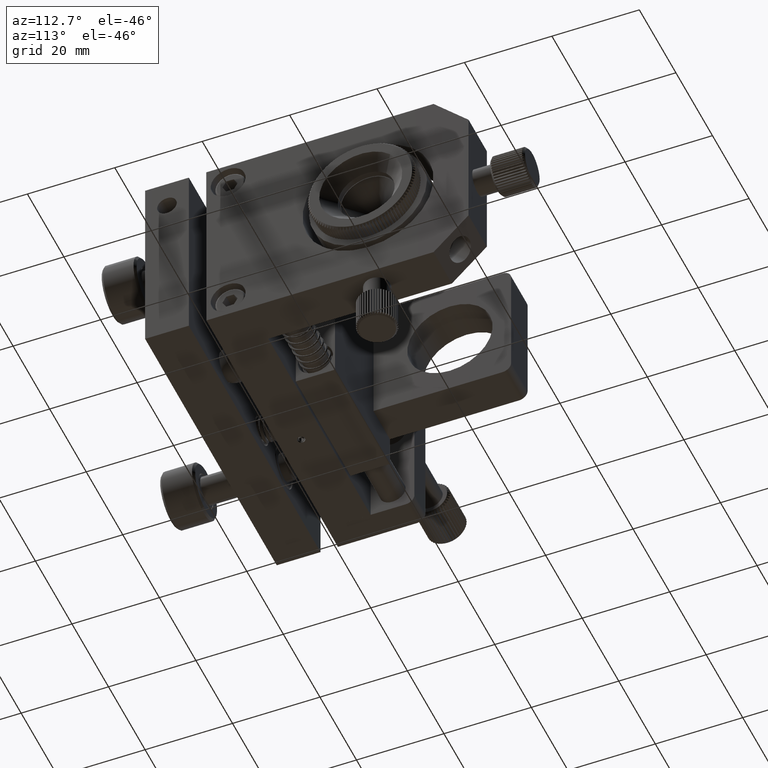
[diagram: clean part render]
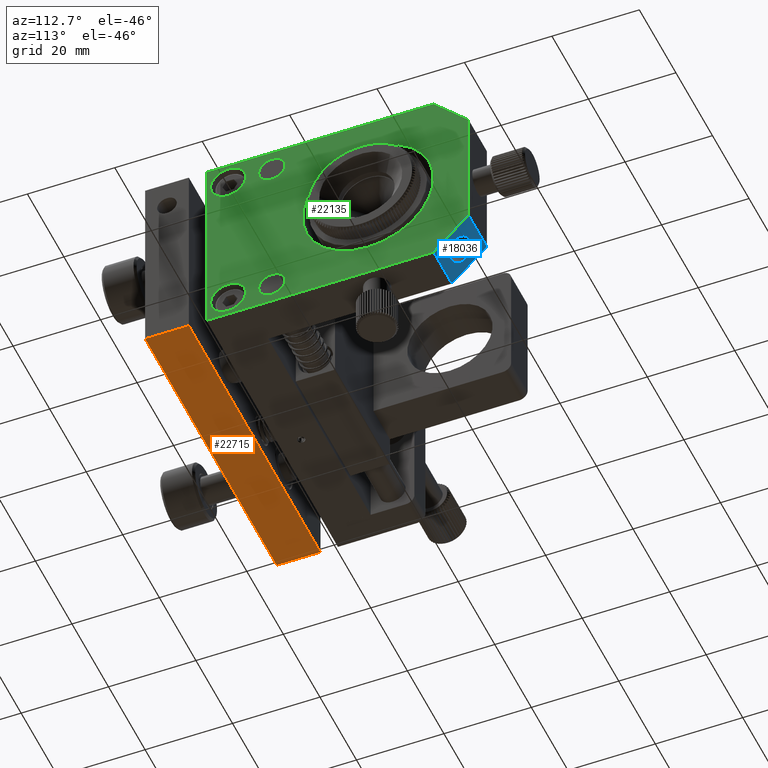
[diagram: same view with three faces highlighted in distinct colors, each labeled with its STEP entity id]
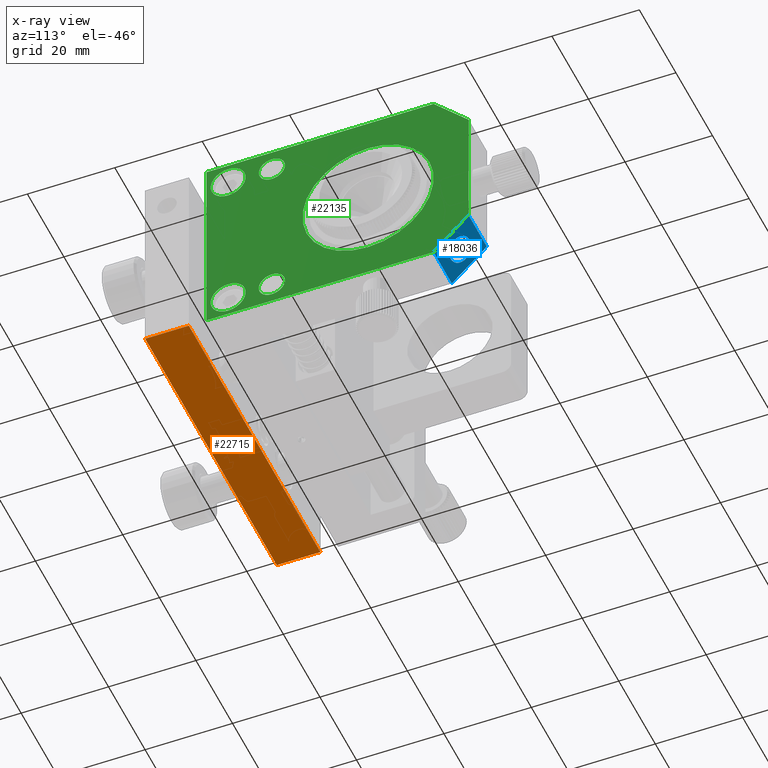
[diagram: x-ray of the same camera — body ghosted, the three highlighted faces saturated]
A machine part, auxiliary view with three faces highlighted in distinct colors.
The next image is the same camera in x-ray (body ghosted, the three faces saturated) — at least one of them is partly hidden behind the body in this view.
Their STEP definitions:

[orange] entity #22715 — the highlighted planar face has unit normal (0, 0, -1).
#620 = CARTESIAN_POINT ( 'NONE',  ( -34.00000000000003600, -18.99999999999998900, -22.50000000000000400 ) ) ;
#5183 = PLANE ( 'NONE',  #14221 ) ;
#5376 = VERTEX_POINT ( 'NONE', #47000 ) ;
#5561 = VECTOR ( 'NONE', #56201, 1000.000000000000000 ) ;
#5701 = CARTESIAN_POINT ( 'NONE',  ( -34.00000000000003600, -18.99999999999998900, -22.50000000000000400 ) ) ;
#5919 = VERTEX_POINT ( 'NONE', #41710 ) ;
#7109 = CARTESIAN_POINT ( 'NONE',  ( 37.99999999999987900, -9.000000000000007100, -22.49999999999999600 ) ) ;
#9574 = DIRECTION ( 'NONE',  ( -1.000000000000000000, 2.498001805406602200E-016, -8.408081128185333300E-017 ) ) ;
#9886 = VERTEX_POINT ( 'NONE', #5701 ) ;
#10504 = FACE_OUTER_BOUND ( 'NONE', #31613, .T. ) ;
#11066 = CARTESIAN_POINT ( 'NONE',  ( 37.99999999999994300, -19.00000000000000400, -22.49999999999999600 ) ) ;
#12610 = ORIENTED_EDGE ( 'NONE', *, *, #15563, .F. ) ;
#14221 = AXIS2_PLACEMENT_3D ( 'NONE', #30211, #64279, #59472 ) ;
#14650 = CARTESIAN_POINT ( 'NONE',  ( 37.99999999999994300, -19.00000000000000400, -22.49999999999999600 ) ) ;
#15033 = VERTEX_POINT ( 'NONE', #45334 ) ;
#15563 = EDGE_CURVE ( 'NONE', #5376, #5919, #31143, .T. ) ;
#15930 = DIRECTION ( 'NONE',  ( 2.498001805406602200E-016, 1.000000000000000000, 3.822911689378453800E-032 ) ) ;
#19881 = ORIENTED_EDGE ( 'NONE', *, *, #43785, .F. ) ;
#20408 = LINE ( 'NONE', #620, #5561 ) ;
#22715 = ADVANCED_FACE ( 'NONE', ( #10504 ), #5183, .T. ) ;
#23121 = VECTOR ( 'NONE', #9574, 1000.000000000000000 ) ;
#25879 = ORIENTED_EDGE ( 'NONE', *, *, #29557, .T. ) ;
#29029 = LINE ( 'NONE', #7109, #57141 ) ;
#29557 = EDGE_CURVE ( 'NONE', #5376, #9886, #43378, .T. ) ;
#30211 = CARTESIAN_POINT ( 'NONE',  ( 37.99999999999994300, -19.00000000000000400, -22.49999999999999600 ) ) ;
#31143 = LINE ( 'NONE', #11066, #56873 ) ;
#31613 = EDGE_LOOP ( 'NONE', ( #51731, #19881, #12610, #25879 ) ) ;
#41710 = CARTESIAN_POINT ( 'NONE',  ( 37.99999999999987900, -9.000000000000007100, -22.49999999999999600 ) ) ;
#43378 = LINE ( 'NONE', #14650, #23121 ) ;
#43785 = EDGE_CURVE ( 'NONE', #5919, #15033, #29029, .T. ) ;
#45334 = CARTESIAN_POINT ( 'NONE',  ( -34.00000000000009900, -8.999999999999991100, -22.50000000000000400 ) ) ;
#47000 = CARTESIAN_POINT ( 'NONE',  ( 37.99999999999994300, -19.00000000000000400, -22.49999999999999600 ) ) ;
#51595 = DIRECTION ( 'NONE',  ( -1.000000000000000000, 2.498001805406602200E-016, -8.408081128185333300E-017 ) ) ;
#51731 = ORIENTED_EDGE ( 'NONE', *, *, #63438, .T. ) ;
#56201 = DIRECTION ( 'NONE',  ( 2.498001805406602200E-016, 1.000000000000000000, 3.822911689378453800E-032 ) ) ;
#56873 = VECTOR ( 'NONE', #15930, 1000.000000000000000 ) ;
#57141 = VECTOR ( 'NONE', #51595, 1000.000000000000000 ) ;
#59472 = DIRECTION ( 'NONE',  ( -1.000000000000000000, 2.498001805406602200E-016, -8.408081128185333300E-017 ) ) ;
#63438 = EDGE_CURVE ( 'NONE', #9886, #15033, #20408, .T. ) ;
#64279 = DIRECTION ( 'NONE',  ( 8.408081128185333300E-017, 2.108952539334232600E-032, -1.000000000000000000 ) ) ;

[blue] entity #18036 — the highlighted planar face has unit normal (-0, -0.7071, 0.7071).
#343 = CARTESIAN_POINT ( 'NONE',  ( 38.00000000000000000, 54.99999999999999300, -14.50000000000000900 ) ) ;
#482 = DIRECTION ( 'NONE',  ( -1.000000000000000000, 0.0000000000000000000, -1.541976423090495400E-016 ) ) ;
#1194 = CARTESIAN_POINT ( 'NONE',  ( 38.00000000000000000, 54.99999999999999300, -14.50000000000000900 ) ) ;
#3676 = DIRECTION ( 'NONE',  ( 0.0000000000000000000, 0.7071067811865475700, 0.7071067811865475700 ) ) ;
#4710 = LINE ( 'NONE', #31181, #5456 ) ;
#5456 = VECTOR ( 'NONE', #482, 1000.000000000000000 ) ;
#6065 = CARTESIAN_POINT ( 'NONE',  ( 33.00000000000000000, 48.87867965644036200, -20.62132034355966700 ) ) ;
#6111 = VERTEX_POINT ( 'NONE', #60835 ) ;
#6738 = CARTESIAN_POINT ( 'NONE',  ( 38.00000000000000000, 54.99999999999999300, -14.50000000000000900 ) ) ;
#9588 = CIRCLE ( 'NONE', #49336, 2.999999999999999100 ) ;
#10906 = LINE ( 'NONE', #6738, #59195 ) ;
#11176 = DIRECTION ( 'NONE',  ( 1.090341985197066100E-016, -0.7071067811865474600, -0.7071067811865474600 ) ) ;
#12567 = VERTEX_POINT ( 'NONE', #51360 ) ;
#13346 = ORIENTED_EDGE ( 'NONE', *, *, #26757, .F. ) ;
#13364 = EDGE_CURVE ( 'NONE', #12567, #38341, #9588, .T. ) ;
#18036 = ADVANCED_FACE ( 'NONE', ( #25677, #30325 ), #35800, .F. ) ;
#18152 = CARTESIAN_POINT ( 'NONE',  ( 37.99999999999999300, 47.00000000000000000, -22.50000000000003900 ) ) ;
#20726 = CIRCLE ( 'NONE', #44118, 2.999999999999999100 ) ;
#23685 = DIRECTION ( 'NONE',  ( 1.090341985197066400E-016, 0.7071067811865474600, -0.7071067811865476800 ) ) ;
#25573 = ORIENTED_EDGE ( 'NONE', *, *, #49897, .T. ) ;
#25677 = FACE_BOUND ( 'NONE', #64495, .T. ) ;
#26154 = DIRECTION ( 'NONE',  ( -1.000000000000000000, 0.0000000000000000000, -1.541976423090495400E-016 ) ) ;
#26169 = EDGE_CURVE ( 'NONE', #31905, #52659, #10906, .T. ) ;
#26757 = EDGE_CURVE ( 'NONE', #32707, #31905, #53013, .T. ) ;
#27635 = DIRECTION ( 'NONE',  ( -1.090341985197066100E-016, 0.7071067811865474600, 0.7071067811865474600 ) ) ;
#28148 = EDGE_LOOP ( 'NONE', ( #25573, #36175, #13346, #42804 ) ) ;
#28880 = CARTESIAN_POINT ( 'NONE',  ( 32.99999999999999300, 51.00000000000000700, -18.50000000000002500 ) ) ;
#30325 = FACE_OUTER_BOUND ( 'NONE', #28148, .T. ) ;
#31181 = CARTESIAN_POINT ( 'NONE',  ( 37.99999999999999300, 47.00000000000000000, -22.50000000000003900 ) ) ;
#31905 = VERTEX_POINT ( 'NONE', #61597 ) ;
#32272 = CARTESIAN_POINT ( 'NONE',  ( 27.99999999999999600, 54.99999999999999300, -14.49999999999999500 ) ) ;
#32707 = VERTEX_POINT ( 'NONE', #18152 ) ;
#34448 = DIRECTION ( 'NONE',  ( 1.090341985197066400E-016, 0.7071067811865474600, -0.7071067811865476800 ) ) ;
#34863 = AXIS2_PLACEMENT_3D ( 'NONE', #1194, #55874, #11176 ) ;
#35412 = DIRECTION ( 'NONE',  ( -1.090341985197066100E-016, 0.7071067811865474600, 0.7071067811865474600 ) ) ;
#35800 = PLANE ( 'NONE',  #34863 ) ;
#36175 = ORIENTED_EDGE ( 'NONE', *, *, #26169, .F. ) ;
#38341 = VERTEX_POINT ( 'NONE', #6065 ) ;
#39477 = DIRECTION ( 'NONE',  ( 0.0000000000000000000, 0.7071067811865475700, 0.7071067811865475700 ) ) ;
#41973 = EDGE_CURVE ( 'NONE', #38341, #12567, #20726, .T. ) ;
#42804 = ORIENTED_EDGE ( 'NONE', *, *, #46283, .T. ) ;
#44118 = AXIS2_PLACEMENT_3D ( 'NONE', #28880, #23685, #3676 ) ;
#46283 = EDGE_CURVE ( 'NONE', #32707, #6111, #4710, .T. ) ;
#48752 = VECTOR ( 'NONE', #27635, 1000.000000000000100 ) ;
#49336 = AXIS2_PLACEMENT_3D ( 'NONE', #64576, #34448, #39477 ) ;
#49897 = EDGE_CURVE ( 'NONE', #6111, #52659, #51903, .T. ) ;
#51360 = CARTESIAN_POINT ( 'NONE',  ( 33.00000000000000000, 53.12132034355965300, -16.37867965644038300 ) ) ;
#51903 = LINE ( 'NONE', #57512, #48752 ) ;
#52659 = VERTEX_POINT ( 'NONE', #32272 ) ;
#53013 = LINE ( 'NONE', #343, #54578 ) ;
#54578 = VECTOR ( 'NONE', #35412, 1000.000000000000100 ) ;
#55874 = DIRECTION ( 'NONE',  ( -1.090341985197066200E-016, -0.7071067811865475700, 0.7071067811865475700 ) ) ;
#57512 = CARTESIAN_POINT ( 'NONE',  ( 27.99999999999999600, 54.99999999999999300, -14.49999999999999500 ) ) ;
#59195 = VECTOR ( 'NONE', #26154, 1000.000000000000000 ) ;
#60359 = ORIENTED_EDGE ( 'NONE', *, *, #13364, .F. ) ;
#60835 = CARTESIAN_POINT ( 'NONE',  ( 27.99999999999999600, 47.00000000000000000, -22.50000000000001100 ) ) ;
#61597 = CARTESIAN_POINT ( 'NONE',  ( 38.00000000000000000, 54.99999999999999300, -14.50000000000000900 ) ) ;
#64126 = ORIENTED_EDGE ( 'NONE', *, *, #41973, .F. ) ;
#64495 = EDGE_LOOP ( 'NONE', ( #60359, #64126 ) ) ;
#64576 = CARTESIAN_POINT ( 'NONE',  ( 32.99999999999999300, 51.00000000000000700, -18.50000000000002500 ) ) ;

[green] entity #22135 — the highlighted planar face has unit normal (1, 0, 0).
#343 = CARTESIAN_POINT ( 'NONE',  ( 38.00000000000000000, 54.99999999999999300, -14.50000000000000900 ) ) ;
#477 = AXIS2_PLACEMENT_3D ( 'NONE', #34869, #15120, #19932 ) ;
#882 = CARTESIAN_POINT ( 'NONE',  ( 37.99999999999999300, 9.999999999999998200, 20.49999999999995700 ) ) ;
#885 = EDGE_CURVE ( 'NONE', #9469, #16708, #48391, .T. ) ;
#1080 = AXIS2_PLACEMENT_3D ( 'NONE', #10100, #29937, #10542 ) ;
#1200 = CIRCLE ( 'NONE', #26925, 4.000000000000000000 ) ;
#2330 = DIRECTION ( 'NONE',  ( 1.000000000000000000, 0.0000000000000000000, 1.541976423090495400E-016 ) ) ;
#2369 = EDGE_CURVE ( 'NONE', #58240, #40019, #52153, .T. ) ;
#2537 = CARTESIAN_POINT ( 'NONE',  ( 37.99999999999999300, 47.00000000000000000, -22.50000000000003900 ) ) ;
#3620 = FACE_OUTER_BOUND ( 'NONE', #12793, .T. ) ;
#4703 = CARTESIAN_POINT ( 'NONE',  ( 37.99999999999999300, 54.99999999999999300, 14.49999999999999100 ) ) ;
#4864 = CIRCLE ( 'NONE', #1080, 3.000000000000000900 ) ;
#6249 = DIRECTION ( 'NONE',  ( 2.057617461952175700E-032, -1.000000000000000000, -1.334402673828313300E-016 ) ) ;
#8168 = CARTESIAN_POINT ( 'NONE',  ( 37.99999999999999300, 47.00000000000000000, 22.49999999999995700 ) ) ;
#8434 = VECTOR ( 'NONE', #6249, 1000.000000000000000 ) ;
#8716 = ORIENTED_EDGE ( 'NONE', *, *, #14210, .T. ) ;
#8965 = ORIENTED_EDGE ( 'NONE', *, *, #62982, .F. ) ;
#9469 = VERTEX_POINT ( 'NONE', #51612 ) ;
#9743 = DIRECTION ( 'NONE',  ( -1.090341985197065900E-016, -0.7071067811865475700, 0.7071067811865474600 ) ) ;
#10100 = CARTESIAN_POINT ( 'NONE',  ( 38.00000000000000000, 9.999999999999998200, -17.50000000000003600 ) ) ;
#10510 = DIRECTION ( 'NONE',  ( 1.541976423090495400E-016, 8.559688641721049300E-033, -1.000000000000000000 ) ) ;
#10542 = DIRECTION ( 'NONE',  ( 0.0000000000000000000, 0.0000000000000000000, 1.000000000000000000 ) ) ;
#10593 = CARTESIAN_POINT ( 'NONE',  ( 37.99999999999999300, -3.775030183294623100E-016, 21.49999999999995700 ) ) ;
#11243 = CARTESIAN_POINT ( 'NONE',  ( 37.99999999999999300, -5.000000000000000900, -22.50000000000004600 ) ) ;
#11946 = VECTOR ( 'NONE', #20402, 1000.000000000000000 ) ;
#11976 = DIRECTION ( 'NONE',  ( 0.0000000000000000000, 0.0000000000000000000, -1.000000000000000000 ) ) ;
#12245 = ORIENTED_EDGE ( 'NONE', *, *, #50698, .F. ) ;
#12597 = ORIENTED_EDGE ( 'NONE', *, *, #46173, .F. ) ;
#12793 = EDGE_LOOP ( 'NONE', ( #8716, #45875, #62930, #52672, #17273, #21836 ) ) ;
#14131 = VERTEX_POINT ( 'NONE', #34987 ) ;
#14160 = VERTEX_POINT ( 'NONE', #10593 ) ;
#14210 = EDGE_CURVE ( 'NONE', #43751, #32707, #37639, .T. ) ;
#14289 = VERTEX_POINT ( 'NONE', #27957 ) ;
#14516 = EDGE_LOOP ( 'NONE', ( #28634, #56933 ) ) ;
#15120 = DIRECTION ( 'NONE',  ( 1.000000000000000000, 0.0000000000000000000, 1.541976423090495400E-016 ) ) ;
#15451 = CIRCLE ( 'NONE', #46298, 4.000000000000000000 ) ;
#16548 = ORIENTED_EDGE ( 'NONE', *, *, #56060, .F. ) ;
#16708 = VERTEX_POINT ( 'NONE', #45630 ) ;
#17273 = ORIENTED_EDGE ( 'NONE', *, *, #2369, .T. ) ;
#17369 = DIRECTION ( 'NONE',  ( 1.000000000000000000, 0.0000000000000000000, 1.541976423090495400E-016 ) ) ;
#18152 = CARTESIAN_POINT ( 'NONE',  ( 37.99999999999999300, 47.00000000000000000, -22.50000000000003900 ) ) ;
#18176 = VECTOR ( 'NONE', #51993, 1000.000000000000000 ) ;
#18577 = CIRCLE ( 'NONE', #56686, 3.000000000000000900 ) ;
#18712 = CIRCLE ( 'NONE', #31852, 3.000000000000000900 ) ;
#18914 = CIRCLE ( 'NONE', #50702, 4.000000000000000000 ) ;
#19239 = EDGE_CURVE ( 'NONE', #22077, #53010, #18577, .T. ) ;
#19322 = VECTOR ( 'NONE', #9743, 1000.000000000000000 ) ;
#19768 = EDGE_CURVE ( 'NONE', #14160, #49854, #15451, .T. ) ;
#19932 = DIRECTION ( 'NONE',  ( 0.0000000000000000000, 0.0000000000000000000, 1.000000000000000000 ) ) ;
#20268 = DIRECTION ( 'NONE',  ( 1.000000000000000000, 0.0000000000000000000, 1.541976423090495400E-016 ) ) ;
#20316 = DIRECTION ( 'NONE',  ( 1.000000000000000000, 0.0000000000000000000, 1.541976423090495400E-016 ) ) ;
#20402 = DIRECTION ( 'NONE',  ( -1.541976423090495400E-016, 0.0000000000000000000, 1.000000000000000000 ) ) ;
#20745 = DIRECTION ( 'NONE',  ( 1.541976423090495400E-016, 0.0000000000000000000, -1.000000000000000000 ) ) ;
#20928 = CARTESIAN_POINT ( 'NONE',  ( 37.99999999999999300, -8.673617379884035500E-016, 17.49999999999995700 ) ) ;
#21833 = CARTESIAN_POINT ( 'NONE',  ( 37.99999999999999300, 9.999999999999998200, 17.49999999999995400 ) ) ;
#21836 = ORIENTED_EDGE ( 'NONE', *, *, #32323, .T. ) ;
#22077 = VERTEX_POINT ( 'NONE', #30059 ) ;
#22135 = ADVANCED_FACE ( 'NONE', ( #34726, #63617, #43353, #3620, #55807, #22293 ), #29188, .T. ) ;
#22293 = FACE_BOUND ( 'NONE', #54691, .T. ) ;
#23300 = CIRCLE ( 'NONE', #38480, 15.00000000000000000 ) ;
#23367 = DIRECTION ( 'NONE',  ( 0.0000000000000000000, 0.0000000000000000000, -1.000000000000000000 ) ) ;
#23883 = CARTESIAN_POINT ( 'NONE',  ( 37.99999999999999300, 32.00000000000000000, -1.494210044572213000E-014 ) ) ;
#24085 = EDGE_CURVE ( 'NONE', #31905, #28774, #43174, .T. ) ;
#24356 = AXIS2_PLACEMENT_3D ( 'NONE', #20928, #20268, #35459 ) ;
#24866 = CARTESIAN_POINT ( 'NONE',  ( 37.99999999999999300, -5.000000000000000900, 22.49999999999995000 ) ) ;
#25208 = EDGE_CURVE ( 'NONE', #53010, #22077, #18712, .T. ) ;
#26000 = LINE ( 'NONE', #35115, #27525 ) ;
#26757 = EDGE_CURVE ( 'NONE', #32707, #31905, #53013, .T. ) ;
#26925 = AXIS2_PLACEMENT_3D ( 'NONE', #36906, #17369, #41746 ) ;
#27434 = DIRECTION ( 'NONE',  ( 0.0000000000000000000, 0.0000000000000000000, -1.000000000000000000 ) ) ;
#27525 = VECTOR ( 'NONE', #10510, 1000.000000000000000 ) ;
#27957 = CARTESIAN_POINT ( 'NONE',  ( 38.00000000000000000, 9.999999999999998200, -20.50000000000003900 ) ) ;
#28634 = ORIENTED_EDGE ( 'NONE', *, *, #25208, .F. ) ;
#28774 = VERTEX_POINT ( 'NONE', #53056 ) ;
#29188 = PLANE ( 'NONE',  #48356 ) ;
#29937 = DIRECTION ( 'NONE',  ( 1.000000000000000000, 0.0000000000000000000, 1.541976423090495400E-016 ) ) ;
#30059 = CARTESIAN_POINT ( 'NONE',  ( 37.99999999999999300, 9.999999999999998200, 14.49999999999995200 ) ) ;
#31636 = VERTEX_POINT ( 'NONE', #59668 ) ;
#31852 = AXIS2_PLACEMENT_3D ( 'NONE', #21833, #36819, #11976 ) ;
#31905 = VERTEX_POINT ( 'NONE', #61597 ) ;
#31916 = CARTESIAN_POINT ( 'NONE',  ( 37.99999999999999300, 9.999999999999998200, 17.49999999999995400 ) ) ;
#32323 = EDGE_CURVE ( 'NONE', #40019, #43751, #26000, .T. ) ;
#32389 = DIRECTION ( 'NONE',  ( 0.0000000000000000000, 0.0000000000000000000, -1.000000000000000000 ) ) ;
#32512 = EDGE_LOOP ( 'NONE', ( #12245, #8965 ) ) ;
#32707 = VERTEX_POINT ( 'NONE', #18152 ) ;
#33758 = DIRECTION ( 'NONE',  ( 1.000000000000000000, 0.0000000000000000000, 1.541976423090495400E-016 ) ) ;
#34507 = DIRECTION ( 'NONE',  ( 0.0000000000000000000, 0.0000000000000000000, -1.000000000000000000 ) ) ;
#34726 = FACE_BOUND ( 'NONE', #32512, .T. ) ;
#34802 = LINE ( 'NONE', #49015, #19322 ) ;
#34869 = CARTESIAN_POINT ( 'NONE',  ( 38.00000000000000000, 9.999999999999998200, -17.50000000000003600 ) ) ;
#34987 = CARTESIAN_POINT ( 'NONE',  ( 38.00000000000000000, 9.999999999999998200, -14.50000000000003600 ) ) ;
#35115 = CARTESIAN_POINT ( 'NONE',  ( 37.99999999999999300, -5.000000000000000900, 22.49999999999995000 ) ) ;
#35269 = EDGE_LOOP ( 'NONE', ( #41333, #42352 ) ) ;
#35412 = DIRECTION ( 'NONE',  ( -1.090341985197066100E-016, 0.7071067811865474600, 0.7071067811865474600 ) ) ;
#35459 = DIRECTION ( 'NONE',  ( 0.0000000000000000000, 0.0000000000000000000, -1.000000000000000000 ) ) ;
#36076 = CARTESIAN_POINT ( 'NONE',  ( 37.99999999999999300, 47.00000000000000000, 22.49999999999995700 ) ) ;
#36455 = AXIS2_PLACEMENT_3D ( 'NONE', #57297, #51884, #27434 ) ;
#36537 = ORIENTED_EDGE ( 'NONE', *, *, #64015, .F. ) ;
#36819 = DIRECTION ( 'NONE',  ( 1.000000000000000000, 0.0000000000000000000, 1.541976423090495400E-016 ) ) ;
#36906 = CARTESIAN_POINT ( 'NONE',  ( 38.00000000000000000, -8.673617379884035500E-016, -17.50000000000003900 ) ) ;
#37361 = DIRECTION ( 'NONE',  ( 0.0000000000000000000, 0.0000000000000000000, -1.000000000000000000 ) ) ;
#37639 = LINE ( 'NONE', #2537, #18176 ) ;
#38480 = AXIS2_PLACEMENT_3D ( 'NONE', #23883, #44589, #34507 ) ;
#39756 = CIRCLE ( 'NONE', #477, 3.000000000000000900 ) ;
#40019 = VERTEX_POINT ( 'NONE', #24866 ) ;
#41201 = ORIENTED_EDGE ( 'NONE', *, *, #885, .F. ) ;
#41215 = VERTEX_POINT ( 'NONE', #64408 ) ;
#41333 = ORIENTED_EDGE ( 'NONE', *, *, #57901, .F. ) ;
#41464 = EDGE_LOOP ( 'NONE', ( #36537, #12597 ) ) ;
#41746 = DIRECTION ( 'NONE',  ( 0.0000000000000000000, 0.0000000000000000000, -1.000000000000000000 ) ) ;
#42352 = ORIENTED_EDGE ( 'NONE', *, *, #19768, .F. ) ;
#43174 = LINE ( 'NONE', #4703, #11946 ) ;
#43353 = FACE_BOUND ( 'NONE', #41464, .T. ) ;
#43751 = VERTEX_POINT ( 'NONE', #11243 ) ;
#44589 = DIRECTION ( 'NONE',  ( 1.000000000000000000, 0.0000000000000000000, 1.541976423090495400E-016 ) ) ;
#45630 = CARTESIAN_POINT ( 'NONE',  ( 37.99999999999999300, 32.00000000000000000, 14.99999999999998600 ) ) ;
#45875 = ORIENTED_EDGE ( 'NONE', *, *, #26757, .T. ) ;
#46173 = EDGE_CURVE ( 'NONE', #14289, #14131, #39756, .T. ) ;
#46232 = CARTESIAN_POINT ( 'NONE',  ( 37.99999999999999300, -8.673617379884035500E-016, 13.49999999999995700 ) ) ;
#46298 = AXIS2_PLACEMENT_3D ( 'NONE', #57483, #62289, #32389 ) ;
#48356 = AXIS2_PLACEMENT_3D ( 'NONE', #49283, #20316, #20745 ) ;
#48391 = CIRCLE ( 'NONE', #36455, 15.00000000000000000 ) ;
#48417 = CARTESIAN_POINT ( 'NONE',  ( 38.00000000000000000, -8.673617379884035500E-016, -17.50000000000003900 ) ) ;
#49015 = CARTESIAN_POINT ( 'NONE',  ( 37.99999999999999300, 47.00000000000000000, 22.49999999999995700 ) ) ;
#49283 = CARTESIAN_POINT ( 'NONE',  ( 37.99999999999999300, -5.000000000000000900, -22.50000000000003600 ) ) ;
#49854 = VERTEX_POINT ( 'NONE', #46232 ) ;
#50698 = EDGE_CURVE ( 'NONE', #31636, #41215, #1200, .T. ) ;
#50702 = AXIS2_PLACEMENT_3D ( 'NONE', #48417, #33758, #23367 ) ;
#51612 = CARTESIAN_POINT ( 'NONE',  ( 37.99999999999999300, 32.00000000000000000, -15.00000000000001400 ) ) ;
#51884 = DIRECTION ( 'NONE',  ( 1.000000000000000000, 0.0000000000000000000, 1.541976423090495400E-016 ) ) ;
#51993 = DIRECTION ( 'NONE',  ( -2.057617461952175700E-032, 1.000000000000000000, 1.334402673828313300E-016 ) ) ;
#52153 = LINE ( 'NONE', #36076, #8434 ) ;
#52672 = ORIENTED_EDGE ( 'NONE', *, *, #57835, .T. ) ;
#53010 = VERTEX_POINT ( 'NONE', #882 ) ;
#53013 = LINE ( 'NONE', #343, #54578 ) ;
#53056 = CARTESIAN_POINT ( 'NONE',  ( 37.99999999999999300, 54.99999999999999300, 14.49999999999999100 ) ) ;
#54578 = VECTOR ( 'NONE', #35412, 1000.000000000000100 ) ;
#54691 = EDGE_LOOP ( 'NONE', ( #16548, #41201 ) ) ;
#55099 = CIRCLE ( 'NONE', #24356, 4.000000000000000000 ) ;
#55807 = FACE_BOUND ( 'NONE', #14516, .T. ) ;
#56060 = EDGE_CURVE ( 'NONE', #16708, #9469, #23300, .T. ) ;
#56686 = AXIS2_PLACEMENT_3D ( 'NONE', #31916, #2330, #37361 ) ;
#56933 = ORIENTED_EDGE ( 'NONE', *, *, #19239, .F. ) ;
#57297 = CARTESIAN_POINT ( 'NONE',  ( 37.99999999999999300, 32.00000000000000000, -1.494210044572213000E-014 ) ) ;
#57483 = CARTESIAN_POINT ( 'NONE',  ( 37.99999999999999300, -8.673617379884035500E-016, 17.49999999999995700 ) ) ;
#57835 = EDGE_CURVE ( 'NONE', #28774, #58240, #34802, .T. ) ;
#57901 = EDGE_CURVE ( 'NONE', #49854, #14160, #55099, .T. ) ;
#58240 = VERTEX_POINT ( 'NONE', #8168 ) ;
#59668 = CARTESIAN_POINT ( 'NONE',  ( 38.00000000000000000, -8.673617379884035500E-016, -21.50000000000003900 ) ) ;
#61597 = CARTESIAN_POINT ( 'NONE',  ( 38.00000000000000000, 54.99999999999999300, -14.50000000000000900 ) ) ;
#62289 = DIRECTION ( 'NONE',  ( 1.000000000000000000, 0.0000000000000000000, 1.541976423090495400E-016 ) ) ;
#62930 = ORIENTED_EDGE ( 'NONE', *, *, #24085, .T. ) ;
#62982 = EDGE_CURVE ( 'NONE', #41215, #31636, #18914, .T. ) ;
#63617 = FACE_BOUND ( 'NONE', #35269, .T. ) ;
#64015 = EDGE_CURVE ( 'NONE', #14131, #14289, #4864, .T. ) ;
#64408 = CARTESIAN_POINT ( 'NONE',  ( 38.00000000000000000, -3.775030183294623100E-016, -13.50000000000003900 ) ) ;